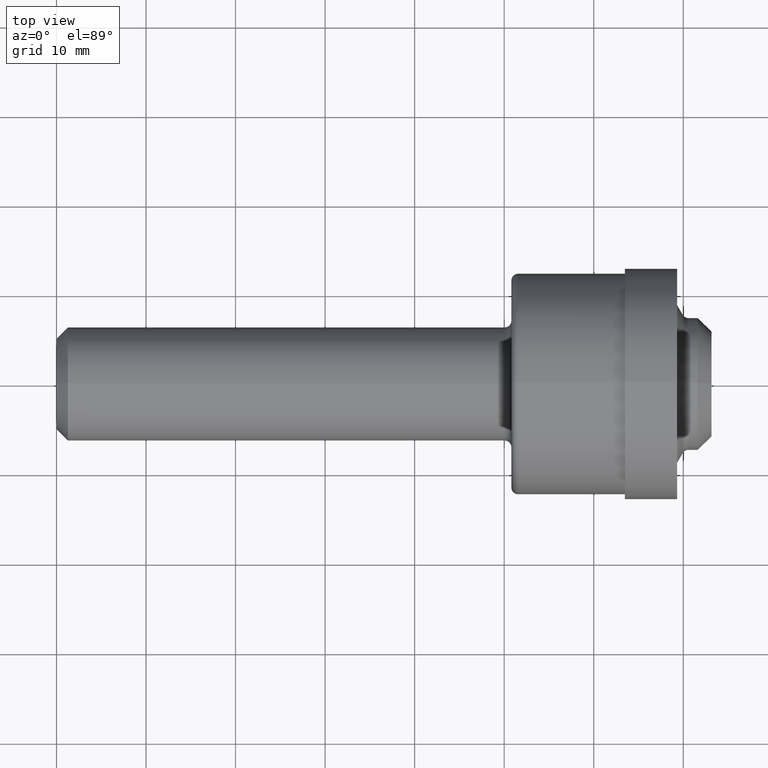
[diagram: clean part render]
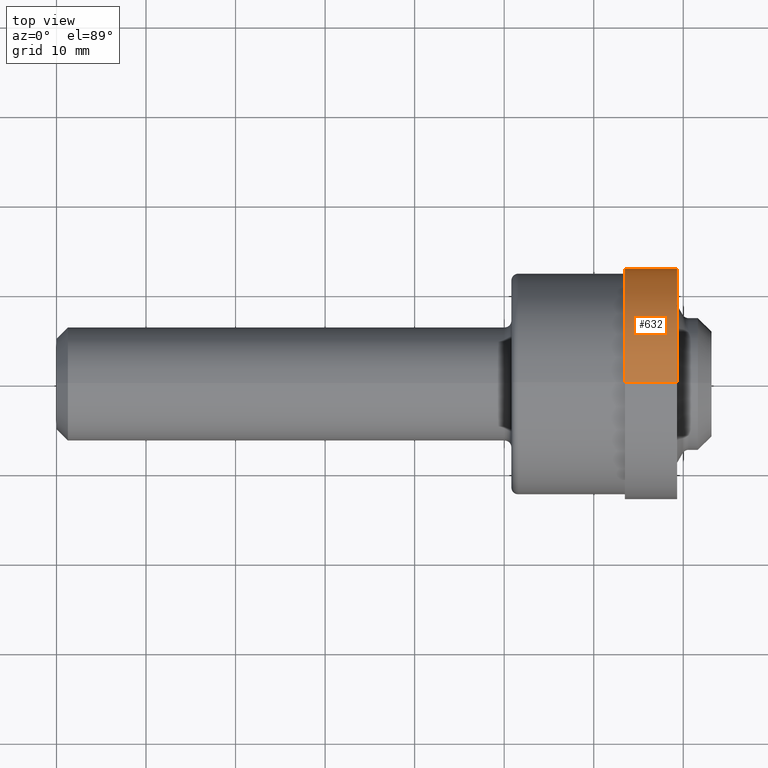
[diagram: same view with one face highlighted and labeled with its STEP entity id]
A machine part, top view. The second image highlights one B-rep face of the part: STEP entity #632.
In plain terms, the highlighted cylindrical surface (partial cylindrical patch) has radius 12.8524 mm, axis along (-1, -0, -0).
Its self-contained STEP definition (entity closure, byte-faithful):
#19 = CARTESIAN_POINT ( 'NONE',  ( 0.000000000000000000, 0.000000000000000000, 0.000000000000000000 ) ) ;
#21 = CARTESIAN_POINT ( 'NONE',  ( 0.000000000000000000, 6.196712803685607066E-17, -0.5060000000000000053 ) ) ;
#43 = DIRECTION ( 'NONE',  ( 0.000000000000000000, 0.000000000000000000, 1.000000000000000000 ) ) ;
#58 = CARTESIAN_POINT ( 'NONE',  ( 2.498999999999999666, 0.000000000000000000, 0.5060000000000000053 ) ) ;
#71 = DIRECTION ( 'NONE',  ( 0.000000000000000000, 0.000000000000000000, 1.000000000000000000 ) ) ;
#90 = VERTEX_POINT ( 'NONE', #58 ) ;
#113 = AXIS2_PLACEMENT_3D ( 'NONE', #501, #177, #400 ) ;
#117 = VERTEX_POINT ( 'NONE', #239 ) ;
#124 = LINE ( 'NONE', #21, #167 ) ;
#139 = EDGE_LOOP ( 'NONE', ( #531, #325, #148, #517 ) ) ;
#148 = ORIENTED_EDGE ( 'NONE', *, *, #329, .F. ) ;
#163 = CARTESIAN_POINT ( 'NONE',  ( 2.728999999999999648, 0.000000000000000000, 0.5060000000000000053 ) ) ;
#167 = VECTOR ( 'NONE', #235, 39.37007874015748143 ) ;
#170 = FACE_OUTER_BOUND ( 'NONE', #139, .T. ) ;
#176 = CIRCLE ( 'NONE', #573, 0.5060000000000000053 ) ;
#177 = DIRECTION ( 'NONE',  ( -1.000000000000000000, -0.000000000000000000, -0.000000000000000000 ) ) ;
#199 = DIRECTION ( 'NONE',  ( -1.000000000000000000, -0.000000000000000000, -0.000000000000000000 ) ) ;
#235 = DIRECTION ( 'NONE',  ( -1.000000000000000000, -0.000000000000000000, -0.000000000000000000 ) ) ;
#239 = CARTESIAN_POINT ( 'NONE',  ( 2.498999999999999666, 6.196712803685607066E-17, -0.5060000000000000053 ) ) ;
#242 = EDGE_CURVE ( 'NONE', #528, #613, #480, .T. ) ;
#252 = EDGE_CURVE ( 'NONE', #613, #117, #124, .T. ) ;
#256 = LINE ( 'NONE', #526, #590 ) ;
#281 = EDGE_CURVE ( 'NONE', #528, #90, #256, .T. ) ;
#325 = ORIENTED_EDGE ( 'NONE', *, *, #252, .T. ) ;
#329 = EDGE_CURVE ( 'NONE', #90, #117, #176, .T. ) ;
#388 = CYLINDRICAL_SURFACE ( 'NONE', #634, 0.5060000000000000053 ) ;
#400 = DIRECTION ( 'NONE',  ( 0.000000000000000000, 0.000000000000000000, 1.000000000000000000 ) ) ;
#410 = DIRECTION ( 'NONE',  ( -1.000000000000000000, -0.000000000000000000, -0.000000000000000000 ) ) ;
#480 = CIRCLE ( 'NONE', #113, 0.5060000000000000053 ) ;
#501 = CARTESIAN_POINT ( 'NONE',  ( 2.728999999999999648, 0.000000000000000000, 0.000000000000000000 ) ) ;
#517 = ORIENTED_EDGE ( 'NONE', *, *, #281, .F. ) ;
#526 = CARTESIAN_POINT ( 'NONE',  ( 0.000000000000000000, 0.000000000000000000, 0.5060000000000000053 ) ) ;
#528 = VERTEX_POINT ( 'NONE', #163 ) ;
#531 = ORIENTED_EDGE ( 'NONE', *, *, #242, .T. ) ;
#573 = AXIS2_PLACEMENT_3D ( 'NONE', #681, #199, #43 ) ;
#590 = VECTOR ( 'NONE', #410, 39.37007874015748143 ) ;
#611 = DIRECTION ( 'NONE',  ( -1.000000000000000000, -0.000000000000000000, -0.000000000000000000 ) ) ;
#613 = VERTEX_POINT ( 'NONE', #650 ) ;
#632 = ADVANCED_FACE ( 'NONE', ( #170 ), #388, .T. ) ;
#634 = AXIS2_PLACEMENT_3D ( 'NONE', #19, #611, #71 ) ;
#650 = CARTESIAN_POINT ( 'NONE',  ( 2.728999999999999648, 6.196712803685607066E-17, -0.5060000000000000053 ) ) ;
#681 = CARTESIAN_POINT ( 'NONE',  ( 2.498999999999999666, 0.000000000000000000, 0.000000000000000000 ) ) ;